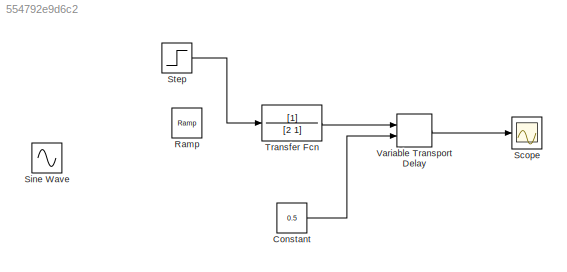
MODEL slx_554792e9d6c2
KIND model
CONFIG AbsTol = auto
CONFIG FixedStep = auto
CONFIG MaxStep = auto
CONFIG MinStep = auto
CONFIG RelTol = 1e-3
CONFIG SampleTimeConstraint = Unconstrained
CONFIG Solver = VariableStepAuto
CONFIG SolverMode = Auto
CONFIG SolverName = VariableStepAuto
CONFIG StartTime = 0.0
CONFIG StopTime = 10.0
BLOCK [Constant] Constant
  Value = 0.5
BLOCK [Reference] Ramp  REF=simulink/Sources/Ramp
  Ports = [0, 1]
  SourceBlock = simulink/Sources/Ramp
  SourceType = Ramp
BLOCK [Scope] Scope
  Ports = [1]
  ScopeSpecificationString = Simulink.scopes.TimeScopeBlockCfg('CurrentConfiguration', extmgr.ConfigurationSet(extmgr.Configuration('Core','General UI',true),extmgr.Configuration('Core','Source UI',true),extmgr.Configuration('Sources','WiredSimulink',true),extmgr.Configuration('Visuals','Time Domain',true,'SerializedDisplays',{struct('MinYLimReal','-0.12392','MaxYLimReal','1.11526','YLabelReal','','MinYLimMag','0.00000','MaxY...<+1373ch>
BLOCK [Sin] Sine Wave
  Ports = [0, 1]
  SampleTime = 0
BLOCK [Step] Step
  SampleTime = 0
  Time = 0
BLOCK [TransferFcn] Transfer Fcn
  Denominator = [2 1]
BLOCK [VariableTransportDelay] Variable Transport Delay
  MaximumDelay = 10
  Ports = [2, 1]
LINE Constant:1 -> Variable Transport Delay:2
LINE Step:1 -> Transfer Fcn:1
LINE Transfer Fcn:1 -> Variable Transport Delay:1
LINE Variable Transport Delay:1 -> Scope:1
